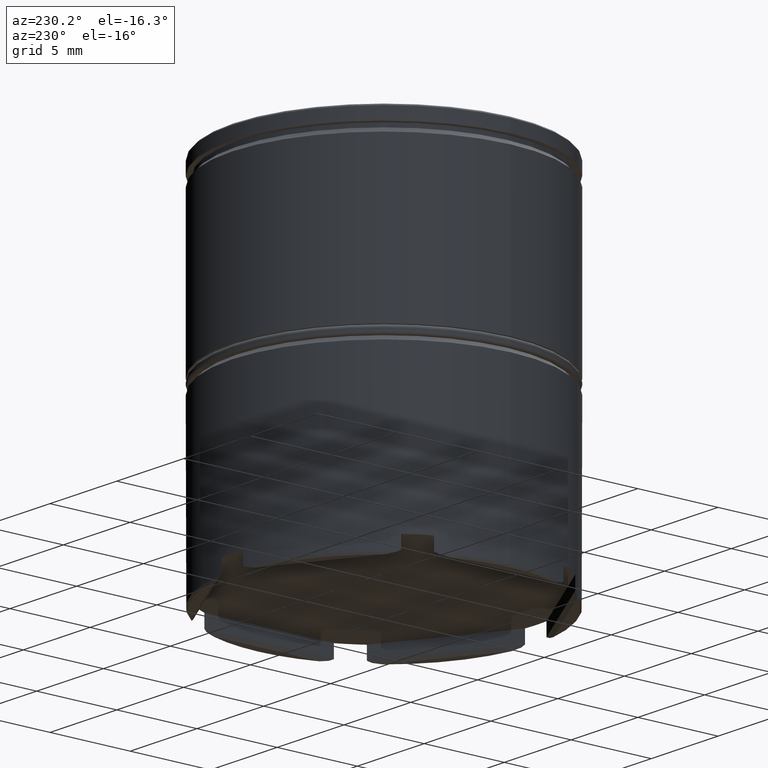
[diagram: clean part render]
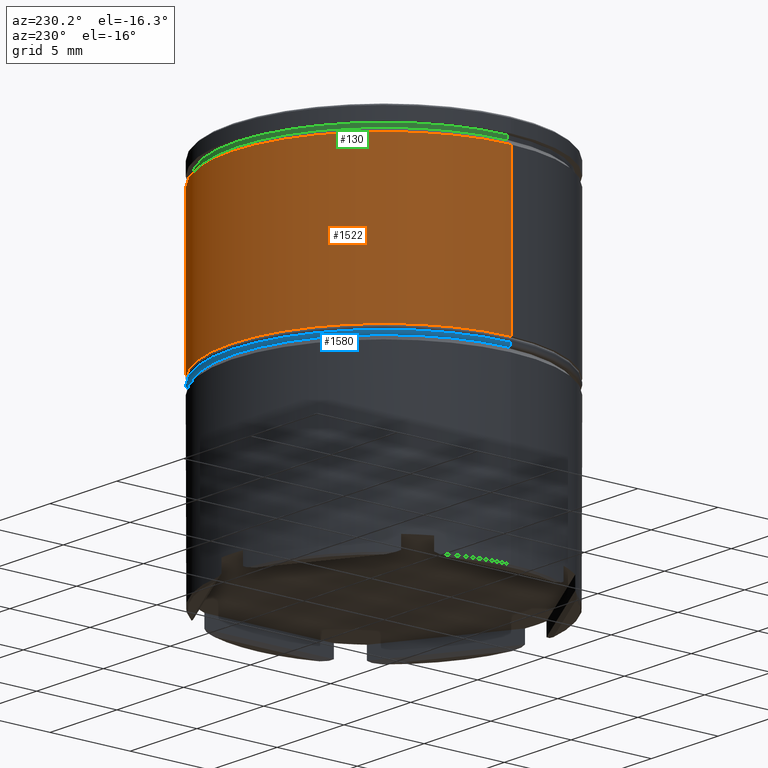
[diagram: same view with three faces highlighted in distinct colors, each labeled with its STEP entity id]
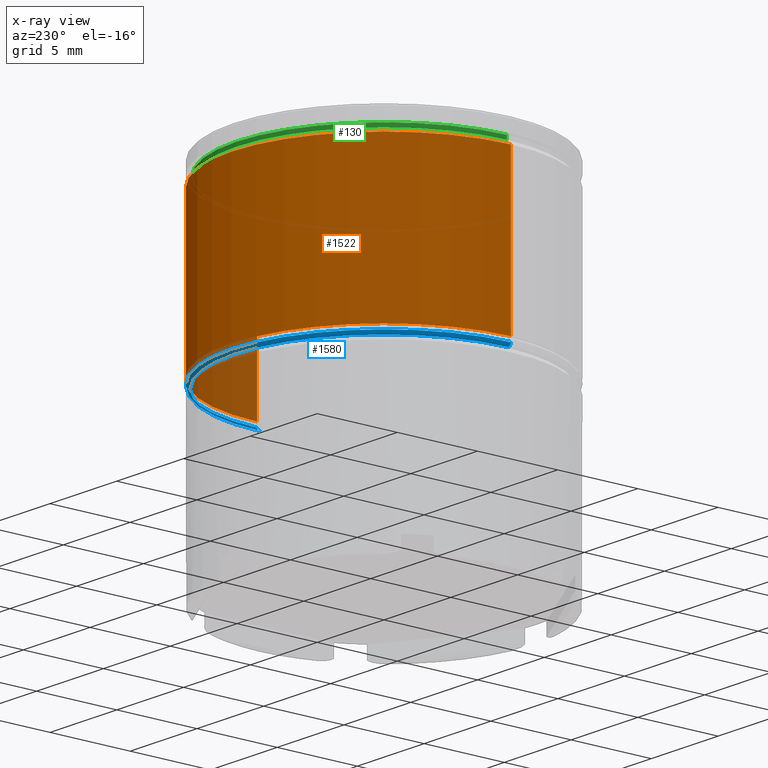
[diagram: x-ray of the same camera — body ghosted, the three highlighted faces saturated]
A machine part, auxiliary view with three faces highlighted in distinct colors.
The next image is the same camera in x-ray (body ghosted, the three faces saturated) — at least one of them is partly hidden behind the body in this view.
Their STEP definitions:

[orange] entity #1522 — the highlighted cylindrical surface (partial cylindrical patch) has radius 9.5 mm, axis along (-0, -0, 1).
#88 = EDGE_LOOP ( 'NONE', ( #655, #1503, #1492, #646 ) ) ;
#119 = AXIS2_PLACEMENT_3D ( 'NONE', #337, #1102, #712 ) ;
#127 = VERTEX_POINT ( 'NONE', #1218 ) ;
#135 = CARTESIAN_POINT ( 'NONE',  ( 9.500000000000000000, 0.000000000000000000, 0.000000000000000000 ) ) ;
#241 = CIRCLE ( 'NONE', #119, 9.500000000000000000 ) ;
#317 = VECTOR ( 'NONE', #745, 1000.000000000000000 ) ;
#337 = CARTESIAN_POINT ( 'NONE',  ( 0.000000000000000000, 0.000000000000000000, -11.00000000000000000 ) ) ;
#413 = DIRECTION ( 'NONE',  ( 1.000000000000000000, 0.000000000000000000, 0.000000000000000000 ) ) ;
#419 = EDGE_CURVE ( 'NONE', #564, #127, #1459, .T. ) ;
#539 = FACE_OUTER_BOUND ( 'NONE', #88, .T. ) ;
#553 = CARTESIAN_POINT ( 'NONE',  ( -9.500000000000000000, 1.163414459189985485E-15, 0.000000000000000000 ) ) ;
#564 = VERTEX_POINT ( 'NONE', #1095 ) ;
#599 = EDGE_CURVE ( 'NONE', #805, #564, #241, .T. ) ;
#646 = ORIENTED_EDGE ( 'NONE', *, *, #737, .F. ) ;
#655 = ORIENTED_EDGE ( 'NONE', *, *, #599, .T. ) ;
#657 = CYLINDRICAL_SURFACE ( 'NONE', #1292, 9.500000000000000000 ) ;
#680 = DIRECTION ( 'NONE',  ( 0.000000000000000000, 0.000000000000000000, -1.000000000000000000 ) ) ;
#705 = DIRECTION ( 'NONE',  ( -0.000000000000000000, -0.000000000000000000, 1.000000000000000000 ) ) ;
#712 = DIRECTION ( 'NONE',  ( 1.000000000000000000, 0.000000000000000000, 0.000000000000000000 ) ) ;
#737 = EDGE_CURVE ( 'NONE', #805, #1267, #897, .T. ) ;
#745 = DIRECTION ( 'NONE',  ( -0.000000000000000000, -0.000000000000000000, 1.000000000000000000 ) ) ;
#805 = VERTEX_POINT ( 'NONE', #1313 ) ;
#897 = LINE ( 'NONE', #135, #317 ) ;
#936 = DIRECTION ( 'NONE',  ( 1.000000000000000000, 0.000000000000000000, 0.000000000000000000 ) ) ;
#976 = VECTOR ( 'NONE', #705, 1000.000000000000000 ) ;
#1047 = EDGE_CURVE ( 'NONE', #127, #1267, #1400, .T. ) ;
#1095 = CARTESIAN_POINT ( 'NONE',  ( -9.500000000000000000, 1.163414459189985485E-15, -11.00000000000000000 ) ) ;
#1099 = CARTESIAN_POINT ( 'NONE',  ( 9.500000000000000000, 0.000000000000000000, -1.425000000000003597 ) ) ;
#1102 = DIRECTION ( 'NONE',  ( -0.000000000000000000, -0.000000000000000000, 1.000000000000000000 ) ) ;
#1218 = CARTESIAN_POINT ( 'NONE',  ( -9.500000000000000000, 1.163414459189985485E-15, -1.425000000000003597 ) ) ;
#1267 = VERTEX_POINT ( 'NONE', #1099 ) ;
#1286 = CARTESIAN_POINT ( 'NONE',  ( 0.000000000000000000, 0.000000000000000000, 0.000000000000000000 ) ) ;
#1292 = AXIS2_PLACEMENT_3D ( 'NONE', #1286, #1550, #413 ) ;
#1313 = CARTESIAN_POINT ( 'NONE',  ( 9.500000000000000000, 0.000000000000000000, -11.00000000000000000 ) ) ;
#1400 = CIRCLE ( 'NONE', #1539, 9.500000000000000000 ) ;
#1459 = LINE ( 'NONE', #553, #976 ) ;
#1492 = ORIENTED_EDGE ( 'NONE', *, *, #1047, .T. ) ;
#1503 = ORIENTED_EDGE ( 'NONE', *, *, #419, .T. ) ;
#1522 = ADVANCED_FACE ( 'NONE', ( #539 ), #657, .T. ) ;
#1539 = AXIS2_PLACEMENT_3D ( 'NONE', #1562, #680, #936 ) ;
#1550 = DIRECTION ( 'NONE',  ( -0.000000000000000000, -0.000000000000000000, 1.000000000000000000 ) ) ;
#1562 = CARTESIAN_POINT ( 'NONE',  ( 0.000000000000000000, 0.000000000000000000, -1.425000000000003597 ) ) ;

[blue] entity #1580 — the highlighted toroidal blend (fillet) surface has major radius 9.3 mm and minor (blend) radius 0.2 mm.
#15 = AXIS2_PLACEMENT_3D ( 'NONE', #1200, #1190, #78 ) ;
#78 = DIRECTION ( 'NONE',  ( -1.000000000000000000, 1.224646799147353207E-16, 0.000000000000000000 ) ) ;
#98 = CIRCLE ( 'NONE', #15, 0.2000000000000005107 ) ;
#101 = CARTESIAN_POINT ( 'NONE',  ( 9.299999999999998934, 0.000000000000000000, -11.49999999999999822 ) ) ;
#113 = VERTEX_POINT ( 'NONE', #131 ) ;
#118 = VERTEX_POINT ( 'NONE', #101 ) ;
#131 = CARTESIAN_POINT ( 'NONE',  ( -9.299999999999998934, 1.151167991198511931E-15, -11.49999999999999822 ) ) ;
#160 = ORIENTED_EDGE ( 'NONE', *, *, #1062, .F. ) ;
#183 = DIRECTION ( 'NONE',  ( 1.000000000000000000, 0.000000000000000000, 0.000000000000000000 ) ) ;
#319 = CIRCLE ( 'NONE', #1220, 0.2000000000000005107 ) ;
#373 = FACE_OUTER_BOUND ( 'NONE', #1634, .T. ) ;
#432 = DIRECTION ( 'NONE',  ( 1.000000000000000000, 0.000000000000000000, 0.000000000000000000 ) ) ;
#447 = DIRECTION ( 'NONE',  ( 0.000000000000000000, 0.000000000000000000, 1.000000000000000000 ) ) ;
#567 = VERTEX_POINT ( 'NONE', #579 ) ;
#579 = CARTESIAN_POINT ( 'NONE',  ( 9.500000000000000000, 0.000000000000000000, -11.29999999999999716 ) ) ;
#671 = DIRECTION ( 'NONE',  ( 0.000000000000000000, 0.000000000000000000, 1.000000000000000000 ) ) ;
#678 = VERTEX_POINT ( 'NONE', #779 ) ;
#779 = CARTESIAN_POINT ( 'NONE',  ( -9.500000000000000000, 1.163414459189985288E-15, -11.29999999999999716 ) ) ;
#784 = DIRECTION ( 'NONE',  ( 0.000000000000000000, 0.000000000000000000, -1.000000000000000000 ) ) ;
#785 = ORIENTED_EDGE ( 'NONE', *, *, #1485, .F. ) ;
#808 = EDGE_CURVE ( 'NONE', #113, #678, #98, .T. ) ;
#828 = CARTESIAN_POINT ( 'NONE',  ( 0.000000000000000000, 0.000000000000000000, -11.29999999999999716 ) ) ;
#854 = AXIS2_PLACEMENT_3D ( 'NONE', #1201, #671, #432 ) ;
#863 = ORIENTED_EDGE ( 'NONE', *, *, #808, .T. ) ;
#909 = CARTESIAN_POINT ( 'NONE',  ( 9.299999999999998934, 0.000000000000000000, -11.29999999999999716 ) ) ;
#1025 = DIRECTION ( 'NONE',  ( 0.000000000000000000, -1.000000000000000000, 0.000000000000000000 ) ) ;
#1054 = CIRCLE ( 'NONE', #1627, 9.500000000000000000 ) ;
#1062 = EDGE_CURVE ( 'NONE', #567, #678, #1054, .T. ) ;
#1166 = EDGE_CURVE ( 'NONE', #113, #118, #1242, .T. ) ;
#1188 = DIRECTION ( 'NONE',  ( 1.000000000000000000, 0.000000000000000000, 0.000000000000000000 ) ) ;
#1190 = DIRECTION ( 'NONE',  ( 1.224646799147353207E-16, 1.000000000000000000, -0.000000000000000000 ) ) ;
#1200 = CARTESIAN_POINT ( 'NONE',  ( -9.299999999999998934, 1.138921523207038377E-15, -11.29999999999999716 ) ) ;
#1201 = CARTESIAN_POINT ( 'NONE',  ( 0.000000000000000000, 0.000000000000000000, -11.29999999999999716 ) ) ;
#1220 = AXIS2_PLACEMENT_3D ( 'NONE', #909, #1025, #784 ) ;
#1242 = CIRCLE ( 'NONE', #1456, 9.299999999999998934 ) ;
#1311 = DIRECTION ( 'NONE',  ( -0.000000000000000000, -0.000000000000000000, -1.000000000000000000 ) ) ;
#1352 = TOROIDAL_SURFACE ( 'NONE', #854, 9.299999999999998934, 0.2000000000000000111 ) ;
#1456 = AXIS2_PLACEMENT_3D ( 'NONE', #1461, #1311, #1188 ) ;
#1461 = CARTESIAN_POINT ( 'NONE',  ( 0.000000000000000000, 0.000000000000000000, -11.49999999999999822 ) ) ;
#1471 = ORIENTED_EDGE ( 'NONE', *, *, #1166, .F. ) ;
#1485 = EDGE_CURVE ( 'NONE', #118, #567, #319, .T. ) ;
#1580 = ADVANCED_FACE ( 'NONE', ( #373 ), #1352, .T. ) ;
#1627 = AXIS2_PLACEMENT_3D ( 'NONE', #828, #447, #183 ) ;
#1634 = EDGE_LOOP ( 'NONE', ( #1471, #863, #160, #785 ) ) ;

[green] entity #130 — the highlighted cylindrical surface (partial cylindrical patch) has radius 9.2 mm, axis along (-0, -0, 1).
#72 = AXIS2_PLACEMENT_3D ( 'NONE', #656, #1388, #547 ) ;
#75 = CARTESIAN_POINT ( 'NONE',  ( 9.199999999999999289, 0.000000000000000000, -1.125000000000000222 ) ) ;
#130 = ADVANCED_FACE ( 'NONE', ( #715 ), #739, .T. ) ;
#152 = VERTEX_POINT ( 'NONE', #229 ) ;
#228 = EDGE_CURVE ( 'NONE', #364, #1005, #418, .T. ) ;
#229 = CARTESIAN_POINT ( 'NONE',  ( -9.199999999999999289, 1.126675055215564822E-15, -1.125000000000000222 ) ) ;
#262 = EDGE_CURVE ( 'NONE', #364, #152, #953, .T. ) ;
#355 = DIRECTION ( 'NONE',  ( -0.000000000000000000, -0.000000000000000000, 1.000000000000000000 ) ) ;
#358 = DIRECTION ( 'NONE',  ( -0.000000000000000000, -0.000000000000000000, 1.000000000000000000 ) ) ;
#364 = VERTEX_POINT ( 'NONE', #75 ) ;
#366 = DIRECTION ( 'NONE',  ( 1.000000000000000000, 0.000000000000000000, 0.000000000000000000 ) ) ;
#402 = DIRECTION ( 'NONE',  ( -0.000000000000000000, -0.000000000000000000, 1.000000000000000000 ) ) ;
#418 = LINE ( 'NONE', #1275, #1435 ) ;
#495 = ORIENTED_EDGE ( 'NONE', *, *, #1277, .F. ) ;
#534 = DIRECTION ( 'NONE',  ( -0.000000000000000000, -0.000000000000000000, 1.000000000000000000 ) ) ;
#547 = DIRECTION ( 'NONE',  ( 1.000000000000000000, 0.000000000000000000, 0.000000000000000000 ) ) ;
#557 = VERTEX_POINT ( 'NONE', #704 ) ;
#656 = CARTESIAN_POINT ( 'NONE',  ( 0.000000000000000000, 0.000000000000000000, -1.125000000000000222 ) ) ;
#692 = CIRCLE ( 'NONE', #825, 9.199999999999999289 ) ;
#704 = CARTESIAN_POINT ( 'NONE',  ( -9.199999999999999289, 1.126675055215564822E-15, -0.8749999999999998890 ) ) ;
#710 = DIRECTION ( 'NONE',  ( 1.000000000000000000, 0.000000000000000000, 0.000000000000000000 ) ) ;
#715 = FACE_OUTER_BOUND ( 'NONE', #872, .T. ) ;
#726 = CARTESIAN_POINT ( 'NONE',  ( 0.000000000000000000, 0.000000000000000000, 0.000000000000000000 ) ) ;
#739 = CYLINDRICAL_SURFACE ( 'NONE', #1056, 9.199999999999999289 ) ;
#751 = ORIENTED_EDGE ( 'NONE', *, *, #1558, .T. ) ;
#825 = AXIS2_PLACEMENT_3D ( 'NONE', #1333, #355, #710 ) ;
#872 = EDGE_LOOP ( 'NONE', ( #1605, #751, #495, #1496 ) ) ;
#953 = CIRCLE ( 'NONE', #72, 9.199999999999999289 ) ;
#1005 = VERTEX_POINT ( 'NONE', #1440 ) ;
#1056 = AXIS2_PLACEMENT_3D ( 'NONE', #726, #358, #366 ) ;
#1155 = CARTESIAN_POINT ( 'NONE',  ( -9.199999999999999289, 1.126675055215564822E-15, 0.000000000000000000 ) ) ;
#1195 = VECTOR ( 'NONE', #534, 1000.000000000000000 ) ;
#1275 = CARTESIAN_POINT ( 'NONE',  ( 9.199999999999999289, 0.000000000000000000, 0.000000000000000000 ) ) ;
#1277 = EDGE_CURVE ( 'NONE', #1005, #557, #692, .T. ) ;
#1280 = LINE ( 'NONE', #1155, #1195 ) ;
#1333 = CARTESIAN_POINT ( 'NONE',  ( 0.000000000000000000, 0.000000000000000000, -0.8749999999999998890 ) ) ;
#1388 = DIRECTION ( 'NONE',  ( -0.000000000000000000, -0.000000000000000000, 1.000000000000000000 ) ) ;
#1435 = VECTOR ( 'NONE', #402, 1000.000000000000000 ) ;
#1440 = CARTESIAN_POINT ( 'NONE',  ( 9.199999999999999289, 0.000000000000000000, -0.8749999999999998890 ) ) ;
#1496 = ORIENTED_EDGE ( 'NONE', *, *, #228, .F. ) ;
#1558 = EDGE_CURVE ( 'NONE', #152, #557, #1280, .T. ) ;
#1605 = ORIENTED_EDGE ( 'NONE', *, *, #262, .T. ) ;